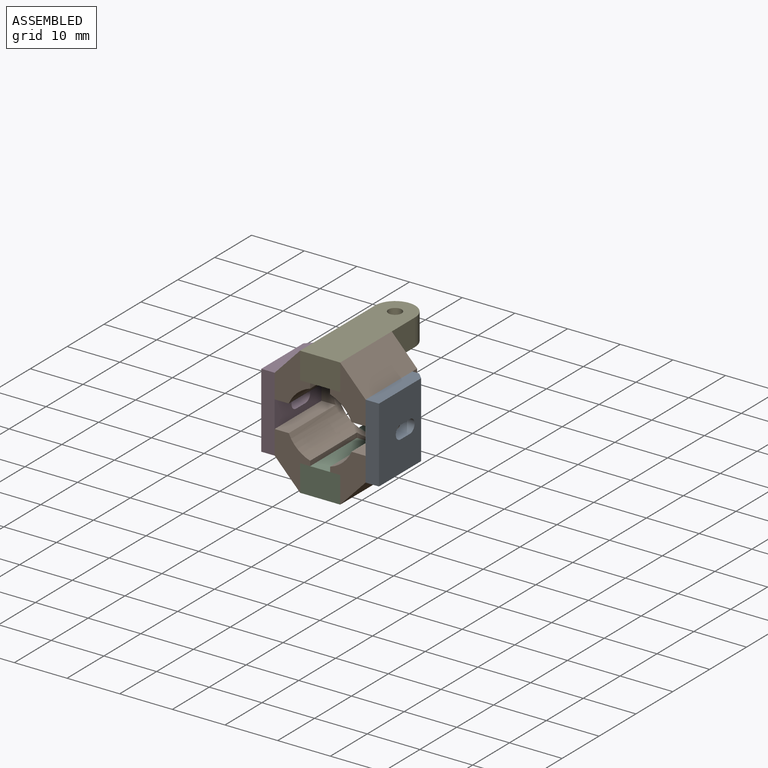
[diagram: assembled view]
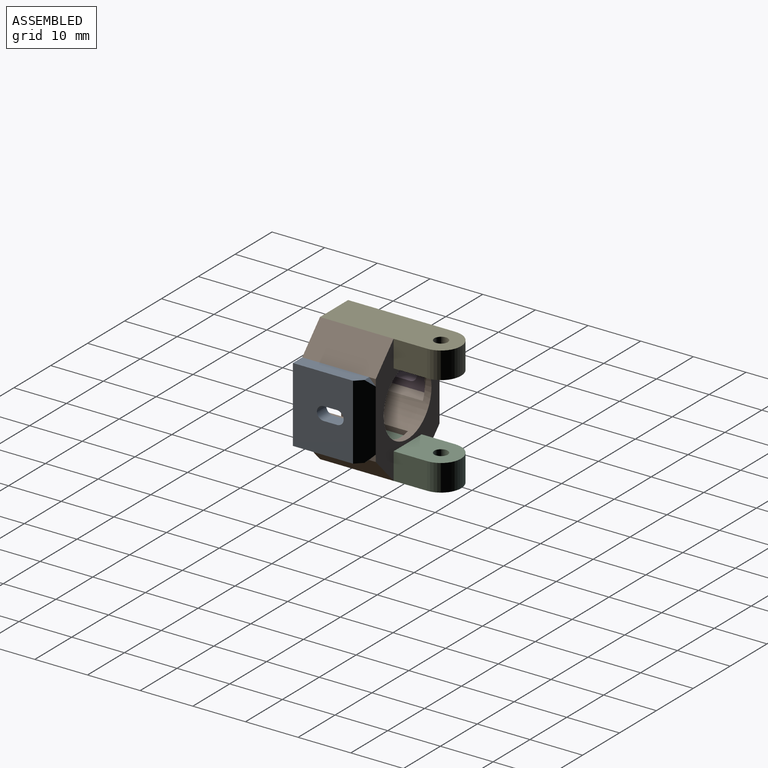
[diagram: assembled view, second angle]
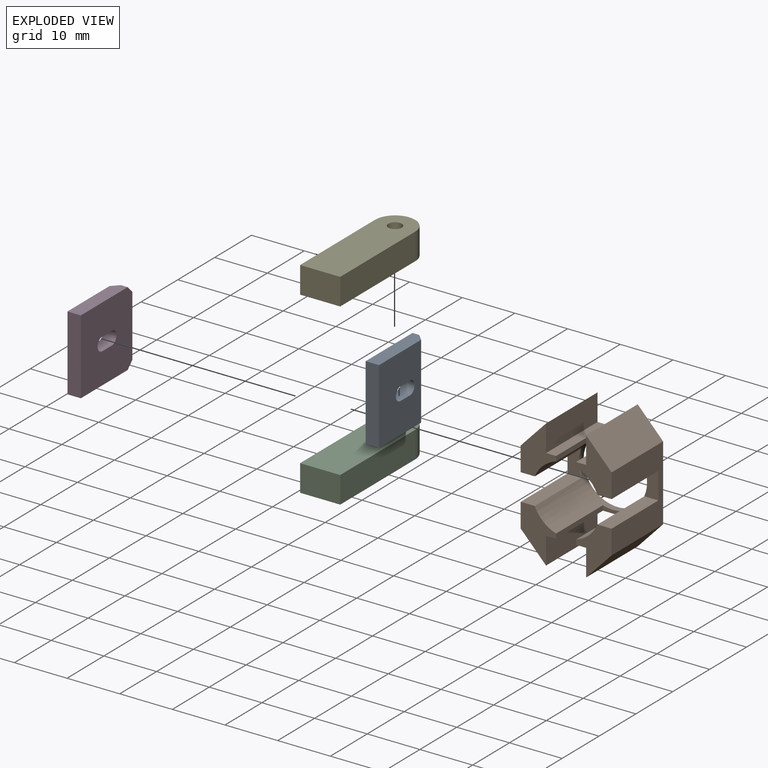
[diagram: exploded view]
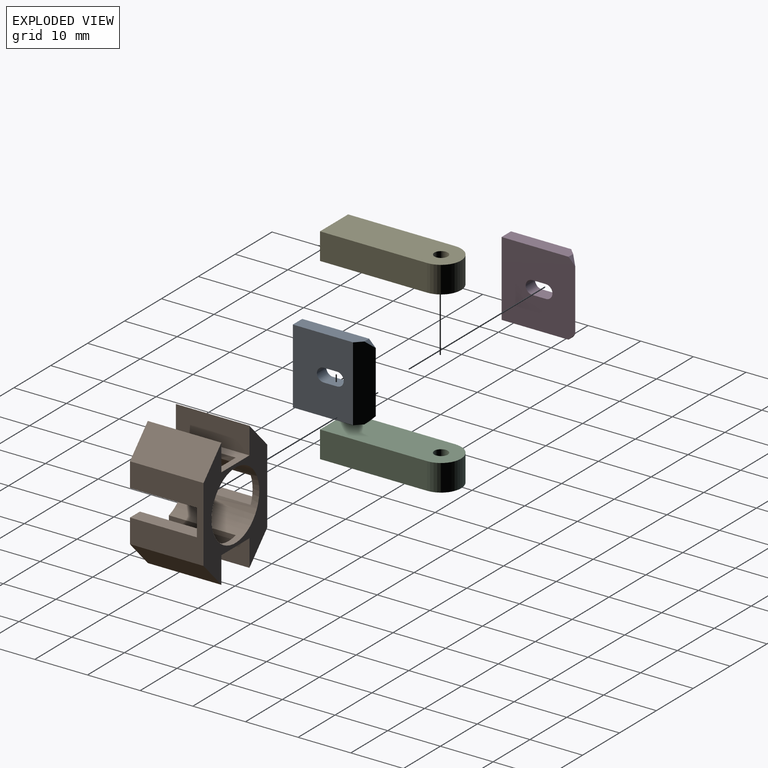
[diagram: exploded view, second angle]
ASSEMBLY  parts=5 mates=4
PART A: 12 faces, bbox 14.2x14x2.5 mm
  f0: cylinder r=1.27mm len=2.54mm, axis (0,0,-1), area 10.1mm2, adj f1,f8,f9,f10
  f1: plane 2.54x2.54mm, normal (1,0,0), area 6.5mm2, adj f0,f2,f9,f10
  f2: cylinder r=1.27mm len=2.54mm, axis (0,0,-1), area 10.1mm2, adj f1,f8,f9,f10
  f3: plane 12.7x2.54mm, normal (1,0,0), area 31.5mm2, adj f4,f7,f9,f10,f11
  f4: plane 1.27x1.27mm, normal (0.71,0.71,0), area 1.1mm2, adj f3,f10,f11
  f5: plane 1.27x1.27mm, normal (-0.71,0.71,0), area 1.1mm2, adj f6,f10,f11
  f6: plane 12.7x2.54mm, normal (-1,0,0), area 31.5mm2, adj f5,f7,f9,f10,f11
  f7: plane 14.22x2.54mm, normal (0,-1,0), area 36.1mm2, adj f3,f6,f9,f10
  f8: plane 2.54x2.54mm, normal (-1,0,0), area 6.5mm2, adj f0,f2,f9,f10
  f9: plane 14.22x11.43mm, normal (0,0,1), area 151.1mm2, adj f0,f1,f2,f3,f6,f7,f8,f11
  f10: plane 14.22x13.97mm, normal (0,0,-1), area 185.6mm2, adj f0,f1,f2,f3,f4,f5,f6,f7
  f11: plane 14.22x2.54mm, normal (0,0.71,0.71), area 48.8mm2, adj f3,f4,f5,f6,f9,f10
PART B: 30 faces, bbox 17.3x24.4x14 mm
  f0: plane 3.81x0.92mm, normal (0,0,1), area 2.8mm2, adj f11,f16,f24,f28
  f1: plane 5.08x2.68mm, normal (0,0,1), area 11.8mm2, adj f14,f16,f19,f27
  f2: plane 5.08x2.68mm, normal (0,0,1), area 11.8mm2, adj f8,f16,f21,f25
  f3: plane 3.81x0.92mm, normal (0,0,1), area 2.8mm2, adj f5,f16,f18,f22
  f4: plane 13.97x5.08mm, normal (-1,0,0), area 71mm2, adj f5,f15,f17,f20
  f5: plane 13.97x7.62mm, normal (0,1,0), area 58.1mm2, adj f3,f4,f6,f17,f18,f20,f22,f23
  f6: plane 13.97x5.08mm, normal (1,0,0), area 71mm2, adj f5,f7,f17,f23
  f7: plane 13.97x5.08mm, normal (-0.72,0.69,0), area 97.9mm2, adj f6,f8,f17,f23
  f8: plane 14.22x13.97mm, normal (-1,0,0), area 134.2mm2, adj f2,f7,f9,f17,f21,f23,f25,f26
  f9: plane 13.97x5.08mm, normal (-0.72,-0.69,0), area 97.9mm2, adj f8,f10,f17,f26
  f10: plane 13.97x5.08mm, normal (1,0,0), area 71mm2, adj f9,f11,f17,f26
  f11: plane 13.97x7.62mm, normal (0,-1,0), area 58.1mm2, adj f0,f10,f12,f17,f24,f26,f28,f29
  f12: plane 13.97x5.08mm, normal (-1,0,0), area 71mm2, adj f11,f13,f17,f29
  f13: plane 13.97x5.08mm, normal (0.72,-0.69,0), area 97.9mm2, adj f12,f14,f17,f29
  f14: plane 14.22x13.97mm, normal (1,0,0), area 134.2mm2, adj f1,f13,f15,f17,f19,f20,f27,f29
  f15: plane 13.97x5.08mm, normal (0.72,0.69,0), area 97.9mm2, adj f4,f14,f17,f20
  f16: cylinder r=6.48mm len=13.97mm, axis (0,0,1), area 337.7mm2, adj f0,f1,f2,f3,f17,f18,f19,f20
  f17: plane 24.38x17.27mm, normal (0,0,-1), area 162.9mm2, adj f4,f5,f6,f7,f8,f9,f10,f11
  f18: plane 12.7x0.92mm, normal (-1,0,0), area 11.7mm2, adj f3,f5,f16,f20
  f19: plane 12.7x2.68mm, normal (0,-1,0), area 34mm2, adj f1,f14,f16,f20
  f20: plane 9.65x6.73mm, normal (0,0,1), area 33.4mm2, adj f4,f5,f14,f15,f16,f18,f19
  f21: plane 12.7x2.68mm, normal (0,-1,0), area 34mm2, adj f2,f8,f16,f23
  f22: plane 12.7x0.92mm, normal (1,0,0), area 11.7mm2, adj f3,f5,f16,f23
  f23: plane 9.65x6.73mm, normal (0,0,1), area 33.4mm2, adj f5,f6,f7,f8,f16,f21,f22
  f24: plane 12.7x0.92mm, normal (1,0,0), area 11.7mm2, adj f0,f11,f16,f26
  f25: plane 12.7x2.68mm, normal (0,1,0), area 34mm2, adj f2,f8,f16,f26
  f26: plane 9.65x6.73mm, normal (0,0,1), area 33.4mm2, adj f8,f9,f10,f11,f16,f24,f25
  f27: plane 12.7x2.68mm, normal (0,1,0), area 34mm2, adj f1,f14,f16,f29
  f28: plane 12.7x0.92mm, normal (-1,0,0), area 11.7mm2, adj f0,f11,f16,f29
  f29: plane 9.65x6.73mm, normal (0,0,1), area 33.4mm2, adj f11,f12,f13,f14,f16,f27,f28
PART C: 7 faces, bbox 7.6x24.1x5.1 mm
  f0: plane 20.32x5.08mm, normal (-1,0,0), area 103.2mm2, adj f1,f3,f5,f6
  f1: plane 7.62x5.08mm, normal (0,-1,0), area 38.7mm2, adj f0,f2,f5,f6
  f2: plane 20.32x5.08mm, normal (1,0,0), area 103.2mm2, adj f1,f3,f5,f6
  f3: cylinder r=3.81mm len=7.62mm, axis (0,0,-1), area 60.8mm2, adj f0,f2,f5,f6
  f4: cylinder r=1.27mm len=5.08mm, axis (0,0,-1), area 40.5mm2, adj f5,f6
  f5: plane 24.13x7.62mm, normal (0,0,1), area 172.6mm2, adj f0,f1,f2,f3,f4
  f6: plane 24.13x7.62mm, normal (0,0,-1), area 172.6mm2, adj f0,f1,f2,f3,f4
PART D: same geometry as A
PART E: same geometry as C
PLACE A rot(axis=(0,1,0),90deg) t=(-7.68,-9.63,-2.35)mm
PLACE B rot(axis=(1,0,0),90deg) t=(-16.32,-3.92,-2.35)mm
PLACE C rot(axis=(1,0,0),0deg) t=(-16.32,-6.46,-14.54)mm
PLACE D rot(axis=(0,-1,0),90deg) t=(-24.95,-9.63,-2.35)mm
PLACE E t=(-16.32,-6.46,4.76)mm
MATE fastened A.f10 <-> B.f14  axis (-1,0,0) through (-7.68,-16.62,4.76)mm
MATE fastened C.f5 <-> B.f11  axis (0,0,1) through (-20.13,-16.62,-9.46)mm
MATE slider D.f10 <-> B.f8  axis (1,0,0) through (-24.95,-16.62,4.76)mm
MATE slider B.f5 <-> E.f6  axis (0,0,1) through (-20.13,-16.62,4.76)mm
